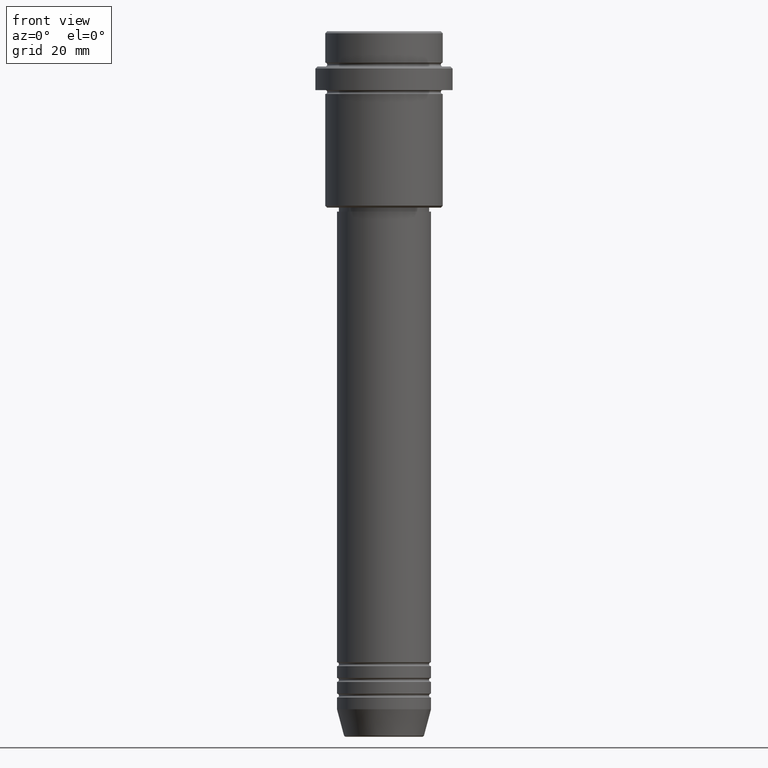
[diagram: clean part render]
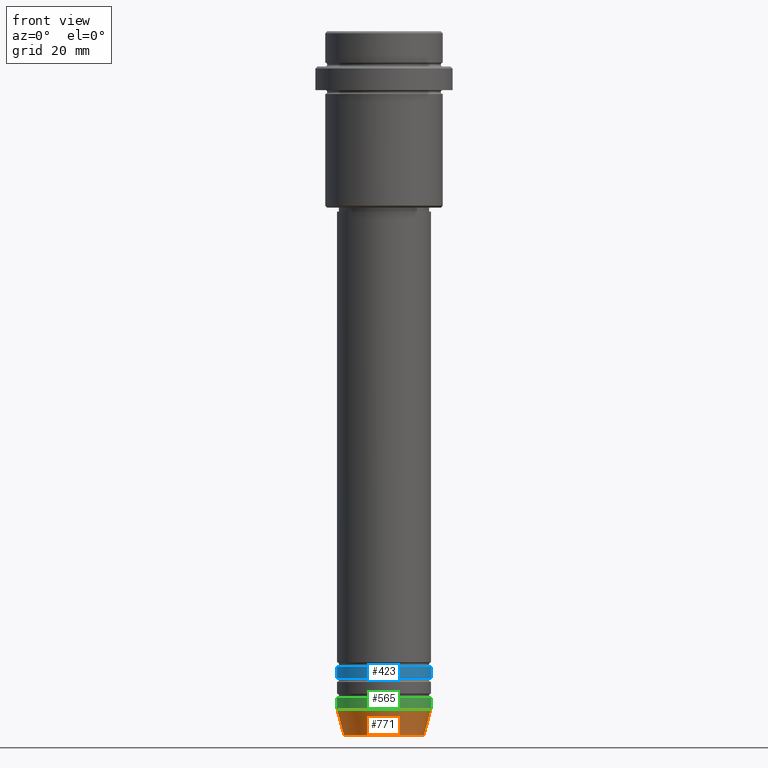
[diagram: same view with three faces highlighted in distinct colors, each labeled with its STEP entity id]
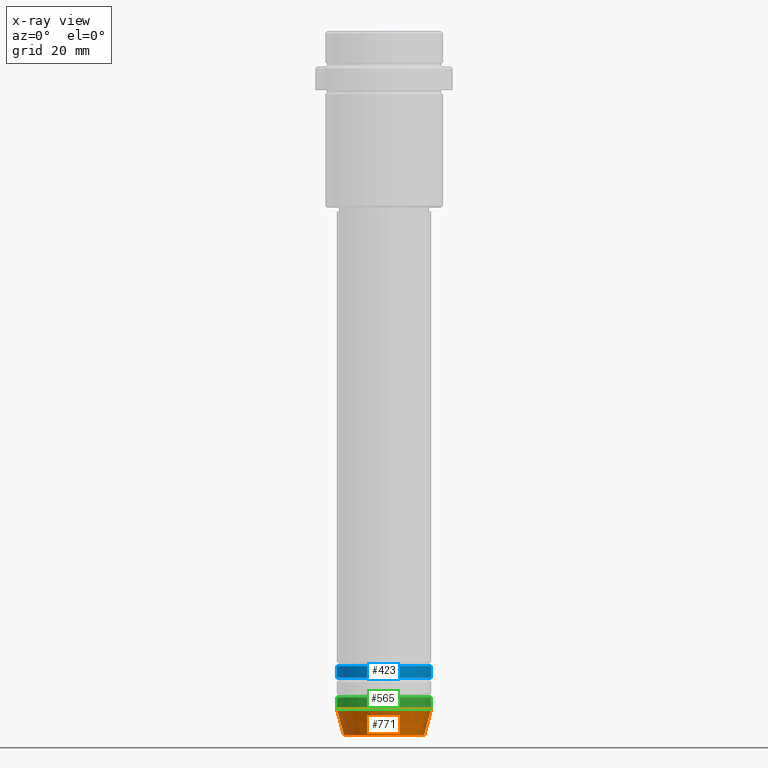
[diagram: x-ray of the same camera — body ghosted, the three highlighted faces saturated]
A machine part, front view with three faces highlighted in distinct colors.
The next image is the same camera in x-ray (body ghosted, the three faces saturated) — at least one of them is partly hidden behind the body in this view.
Their STEP definitions:

[orange] entity #771 — the highlighted conical surface has half-angle 15 deg.
#160 = DIRECTION ( 'NONE',  ( 0.2588190451025213501, 0.000000000000000000, 0.9659258262890680902 ) ) ;
#194 = VECTOR ( 'NONE', #976, 1000.000000000000000 ) ;
#197 = AXIS2_PLACEMENT_3D ( 'NONE', #1044, #292, #717 ) ;
#212 = EDGE_CURVE ( 'NONE', #1289, #932, #861, .T. ) ;
#218 = DIRECTION ( 'NONE',  ( 1.000000000000000000, 0.000000000000000000, 0.000000000000000000 ) ) ;
#229 = VERTEX_POINT ( 'NONE', #547 ) ;
#292 = DIRECTION ( 'NONE',  ( -0.000000000000000000, -0.000000000000000000, 1.000000000000000000 ) ) ;
#317 = CIRCLE ( 'NONE', #336, 12.00000000000000000 ) ;
#331 = ORIENTED_EDGE ( 'NONE', *, *, #626, .T. ) ;
#336 = AXIS2_PLACEMENT_3D ( 'NONE', #422, #747, #218 ) ;
#351 = ORIENTED_EDGE ( 'NONE', *, *, #981, .F. ) ;
#368 = CARTESIAN_POINT ( 'NONE',  ( 0.000000000000000000, 0.000000000000000000, -179.6294095225512706 ) ) ;
#382 = CARTESIAN_POINT ( 'NONE',  ( 12.00000000000000000, 0.000000000000000000, -173.0000000000000284 ) ) ;
#422 = CARTESIAN_POINT ( 'NONE',  ( 0.000000000000000000, 0.000000000000000000, -173.0000000000000284 ) ) ;
#433 = CARTESIAN_POINT ( 'NONE',  ( -12.00000000000000000, 1.469576158976823947E-15, -173.0000000000000284 ) ) ;
#538 = CARTESIAN_POINT ( 'NONE',  ( -10.22365507213719837, 1.360806402472383336E-15, -179.6294095225512706 ) ) ;
#547 = CARTESIAN_POINT ( 'NONE',  ( 12.00000000000000000, 0.000000000000000000, -173.0000000000000284 ) ) ;
#559 = CARTESIAN_POINT ( 'NONE',  ( 10.22365507213719660, 0.000000000000000000, -179.6294095225512706 ) ) ;
#581 = CIRCLE ( 'NONE', #1382, 10.22365507213719660 ) ;
#625 = CONICAL_SURFACE ( 'NONE', #197, 12.00000000000000000, 0.2617993877991500740 ) ;
#626 = EDGE_CURVE ( 'NONE', #1289, #1031, #581, .T. ) ;
#646 = EDGE_LOOP ( 'NONE', ( #881, #331, #788, #351 ) ) ;
#674 = DIRECTION ( 'NONE',  ( -0.000000000000000000, -0.000000000000000000, 1.000000000000000000 ) ) ;
#717 = DIRECTION ( 'NONE',  ( 1.000000000000000000, 0.000000000000000000, 0.000000000000000000 ) ) ;
#724 = EDGE_CURVE ( 'NONE', #1031, #229, #1236, .T. ) ;
#747 = DIRECTION ( 'NONE',  ( -0.000000000000000000, -0.000000000000000000, 1.000000000000000000 ) ) ;
#771 = ADVANCED_FACE ( 'NONE', ( #810 ), #625, .T. ) ;
#788 = ORIENTED_EDGE ( 'NONE', *, *, #724, .T. ) ;
#810 = FACE_OUTER_BOUND ( 'NONE', #646, .T. ) ;
#861 = LINE ( 'NONE', #1272, #194 ) ;
#881 = ORIENTED_EDGE ( 'NONE', *, *, #212, .F. ) ;
#925 = VECTOR ( 'NONE', #160, 1000.000000000000000 ) ;
#932 = VERTEX_POINT ( 'NONE', #433 ) ;
#976 = DIRECTION ( 'NONE',  ( -0.2588190451025213501, 3.169619151431772337E-17, 0.9659258262890680902 ) ) ;
#981 = EDGE_CURVE ( 'NONE', #932, #229, #317, .T. ) ;
#1031 = VERTEX_POINT ( 'NONE', #559 ) ;
#1044 = CARTESIAN_POINT ( 'NONE',  ( 0.000000000000000000, 0.000000000000000000, -173.0000000000000284 ) ) ;
#1097 = DIRECTION ( 'NONE',  ( 1.000000000000000000, 0.000000000000000000, 0.000000000000000000 ) ) ;
#1236 = LINE ( 'NONE', #382, #925 ) ;
#1272 = CARTESIAN_POINT ( 'NONE',  ( -12.00000000000000000, 1.469576158976823947E-15, -173.0000000000000284 ) ) ;
#1289 = VERTEX_POINT ( 'NONE', #538 ) ;
#1382 = AXIS2_PLACEMENT_3D ( 'NONE', #368, #674, #1097 ) ;

[blue] entity #423 — the highlighted cylindrical surface (partial cylindrical patch) has radius 12 mm, axis along (-0, -0, 1).
#87 = CARTESIAN_POINT ( 'NONE',  ( -12.00000000000000000, 1.469576158976823947E-15, 0.000000000000000000 ) ) ;
#88 = DIRECTION ( 'NONE',  ( -0.000000000000000000, -0.000000000000000000, 1.000000000000000000 ) ) ;
#102 = VECTOR ( 'NONE', #187, 1000.000000000000000 ) ;
#171 = VERTEX_POINT ( 'NONE', #919 ) ;
#187 = DIRECTION ( 'NONE',  ( -0.000000000000000000, -0.000000000000000000, 1.000000000000000000 ) ) ;
#219 = CIRCLE ( 'NONE', #627, 12.00000000000000000 ) ;
#256 = CARTESIAN_POINT ( 'NONE',  ( 0.000000000000000000, 0.000000000000000000, -161.9999999999999147 ) ) ;
#280 = DIRECTION ( 'NONE',  ( 1.000000000000000000, 0.000000000000000000, 0.000000000000000000 ) ) ;
#294 = AXIS2_PLACEMENT_3D ( 'NONE', #256, #88, #310 ) ;
#303 = VERTEX_POINT ( 'NONE', #984 ) ;
#310 = DIRECTION ( 'NONE',  ( 1.000000000000000000, 0.000000000000000000, 0.000000000000000000 ) ) ;
#334 = EDGE_CURVE ( 'NONE', #918, #1217, #1199, .T. ) ;
#423 = ADVANCED_FACE ( 'NONE', ( #1373 ), #699, .T. ) ;
#468 = CARTESIAN_POINT ( 'NONE',  ( 0.000000000000000000, 0.000000000000000000, -164.9999999999999147 ) ) ;
#472 = ORIENTED_EDGE ( 'NONE', *, *, #739, .F. ) ;
#489 = DIRECTION ( 'NONE',  ( -0.000000000000000000, -0.000000000000000000, 1.000000000000000000 ) ) ;
#501 = LINE ( 'NONE', #713, #611 ) ;
#502 = ORIENTED_EDGE ( 'NONE', *, *, #1273, .T. ) ;
#513 = DIRECTION ( 'NONE',  ( 1.000000000000000000, 0.000000000000000000, 0.000000000000000000 ) ) ;
#611 = VECTOR ( 'NONE', #1384, 1000.000000000000000 ) ;
#627 = AXIS2_PLACEMENT_3D ( 'NONE', #468, #489, #280 ) ;
#648 = CARTESIAN_POINT ( 'NONE',  ( -12.00000000000000000, 1.469576158976823947E-15, -161.9999999999999147 ) ) ;
#699 = CYLINDRICAL_SURFACE ( 'NONE', #1183, 12.00000000000000000 ) ;
#713 = CARTESIAN_POINT ( 'NONE',  ( 12.00000000000000000, 0.000000000000000000, 0.000000000000000000 ) ) ;
#739 = EDGE_CURVE ( 'NONE', #171, #918, #1140, .T. ) ;
#823 = CARTESIAN_POINT ( 'NONE',  ( 0.000000000000000000, 0.000000000000000000, 0.000000000000000000 ) ) ;
#918 = VERTEX_POINT ( 'NONE', #648 ) ;
#919 = CARTESIAN_POINT ( 'NONE',  ( -12.00000000000000000, 1.469576158976823947E-15, -164.9999999999999147 ) ) ;
#938 = EDGE_LOOP ( 'NONE', ( #472, #1046, #502, #1040 ) ) ;
#984 = CARTESIAN_POINT ( 'NONE',  ( 12.00000000000000000, 0.000000000000000000, -164.9999999999999147 ) ) ;
#1039 = CARTESIAN_POINT ( 'NONE',  ( 12.00000000000000000, 0.000000000000000000, -161.9999999999999147 ) ) ;
#1040 = ORIENTED_EDGE ( 'NONE', *, *, #334, .F. ) ;
#1046 = ORIENTED_EDGE ( 'NONE', *, *, #1155, .T. ) ;
#1052 = DIRECTION ( 'NONE',  ( -0.000000000000000000, -0.000000000000000000, 1.000000000000000000 ) ) ;
#1140 = LINE ( 'NONE', #87, #102 ) ;
#1155 = EDGE_CURVE ( 'NONE', #171, #303, #219, .T. ) ;
#1183 = AXIS2_PLACEMENT_3D ( 'NONE', #823, #1052, #513 ) ;
#1199 = CIRCLE ( 'NONE', #294, 12.00000000000000000 ) ;
#1217 = VERTEX_POINT ( 'NONE', #1039 ) ;
#1273 = EDGE_CURVE ( 'NONE', #303, #1217, #501, .T. ) ;
#1373 = FACE_OUTER_BOUND ( 'NONE', #938, .T. ) ;
#1384 = DIRECTION ( 'NONE',  ( -0.000000000000000000, -0.000000000000000000, 1.000000000000000000 ) ) ;

[green] entity #565 — the highlighted cylindrical surface (partial cylindrical patch) has radius 12 mm, axis along (-0, -0, 1).
#17 = EDGE_CURVE ( 'NONE', #229, #1257, #954, .T. ) ;
#68 = CARTESIAN_POINT ( 'NONE',  ( 12.00000000000000000, 0.000000000000000000, 0.000000000000000000 ) ) ;
#96 = DIRECTION ( 'NONE',  ( -0.000000000000000000, -0.000000000000000000, 1.000000000000000000 ) ) ;
#176 = CIRCLE ( 'NONE', #1359, 12.00000000000000000 ) ;
#213 = VECTOR ( 'NONE', #1390, 1000.000000000000000 ) ;
#218 = DIRECTION ( 'NONE',  ( 1.000000000000000000, 0.000000000000000000, 0.000000000000000000 ) ) ;
#229 = VERTEX_POINT ( 'NONE', #547 ) ;
#240 = DIRECTION ( 'NONE',  ( 1.000000000000000000, 0.000000000000000000, 0.000000000000000000 ) ) ;
#249 = DIRECTION ( 'NONE',  ( -0.000000000000000000, -0.000000000000000000, 1.000000000000000000 ) ) ;
#263 = ORIENTED_EDGE ( 'NONE', *, *, #981, .T. ) ;
#317 = CIRCLE ( 'NONE', #336, 12.00000000000000000 ) ;
#333 = VECTOR ( 'NONE', #96, 1000.000000000000000 ) ;
#336 = AXIS2_PLACEMENT_3D ( 'NONE', #422, #747, #218 ) ;
#422 = CARTESIAN_POINT ( 'NONE',  ( 0.000000000000000000, 0.000000000000000000, -173.0000000000000284 ) ) ;
#433 = CARTESIAN_POINT ( 'NONE',  ( -12.00000000000000000, 1.469576158976823947E-15, -173.0000000000000284 ) ) ;
#455 = CYLINDRICAL_SURFACE ( 'NONE', #1253, 12.00000000000000000 ) ;
#460 = FACE_OUTER_BOUND ( 'NONE', #774, .T. ) ;
#539 = ORIENTED_EDGE ( 'NONE', *, *, #1068, .F. ) ;
#547 = CARTESIAN_POINT ( 'NONE',  ( 12.00000000000000000, 0.000000000000000000, -173.0000000000000284 ) ) ;
#565 = ADVANCED_FACE ( 'NONE', ( #460 ), #455, .T. ) ;
#576 = CARTESIAN_POINT ( 'NONE',  ( 0.000000000000000000, 0.000000000000000000, 0.000000000000000000 ) ) ;
#583 = ORIENTED_EDGE ( 'NONE', *, *, #17, .T. ) ;
#593 = DIRECTION ( 'NONE',  ( 1.000000000000000000, 0.000000000000000000, 0.000000000000000000 ) ) ;
#747 = DIRECTION ( 'NONE',  ( -0.000000000000000000, -0.000000000000000000, 1.000000000000000000 ) ) ;
#774 = EDGE_LOOP ( 'NONE', ( #1368, #263, #583, #539 ) ) ;
#781 = CARTESIAN_POINT ( 'NONE',  ( 0.000000000000000000, 0.000000000000000000, -170.0000000000000000 ) ) ;
#893 = EDGE_CURVE ( 'NONE', #932, #1087, #1181, .T. ) ;
#904 = DIRECTION ( 'NONE',  ( -0.000000000000000000, -0.000000000000000000, 1.000000000000000000 ) ) ;
#932 = VERTEX_POINT ( 'NONE', #433 ) ;
#954 = LINE ( 'NONE', #68, #213 ) ;
#981 = EDGE_CURVE ( 'NONE', #932, #229, #317, .T. ) ;
#1018 = CARTESIAN_POINT ( 'NONE',  ( -12.00000000000000000, 1.469576158976823947E-15, -170.0000000000000000 ) ) ;
#1068 = EDGE_CURVE ( 'NONE', #1087, #1257, #176, .T. ) ;
#1087 = VERTEX_POINT ( 'NONE', #1018 ) ;
#1088 = CARTESIAN_POINT ( 'NONE',  ( -12.00000000000000000, 1.469576158976823947E-15, 0.000000000000000000 ) ) ;
#1181 = LINE ( 'NONE', #1088, #333 ) ;
#1241 = CARTESIAN_POINT ( 'NONE',  ( 12.00000000000000000, 0.000000000000000000, -170.0000000000000000 ) ) ;
#1253 = AXIS2_PLACEMENT_3D ( 'NONE', #576, #904, #593 ) ;
#1257 = VERTEX_POINT ( 'NONE', #1241 ) ;
#1359 = AXIS2_PLACEMENT_3D ( 'NONE', #781, #249, #240 ) ;
#1368 = ORIENTED_EDGE ( 'NONE', *, *, #893, .F. ) ;
#1390 = DIRECTION ( 'NONE',  ( -0.000000000000000000, -0.000000000000000000, 1.000000000000000000 ) ) ;